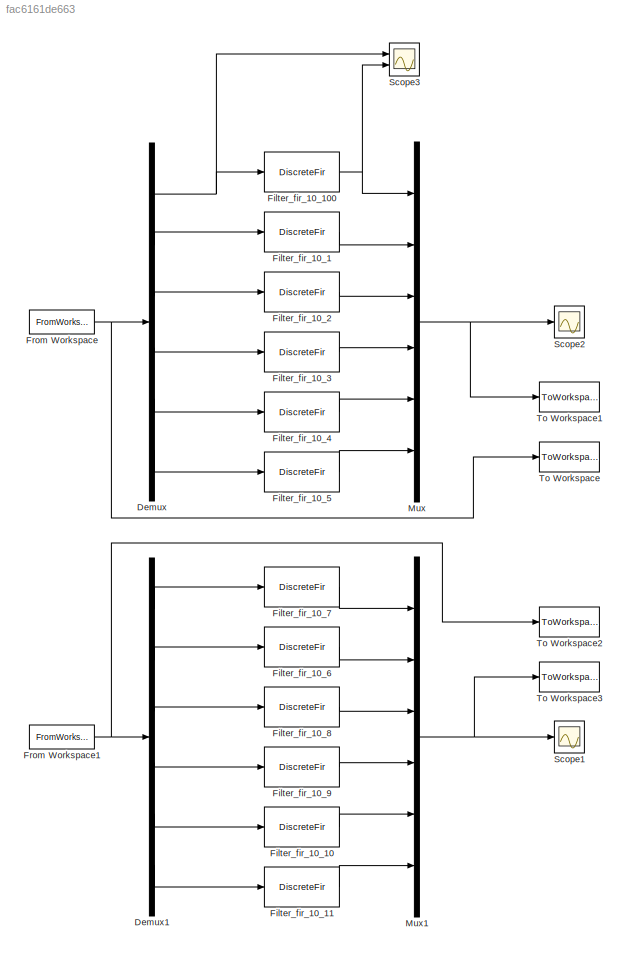
MODEL slx_fac6161de663
KIND model
CONFIG AbsTol = auto
CONFIG EnableMultiTasking = off
CONFIG FixedStep = auto
CONFIG MaxStep = auto
CONFIG MinStep = auto
CONFIG RelTol = 1e-3
CONFIG SampleTimeConstraint = Unconstrained
CONFIG Solver = VariableStepAuto
CONFIG SolverName = VariableStepAuto
CONFIG StartTime = 0.0
CONFIG StopTime = 120
BLOCK [Demux] Demux
  DisplayOption = bar
  Outputs = 6
  Ports = [1, 6]
BLOCK [Demux] Demux1
  DisplayOption = bar
  Outputs = 6
  Ports = [1, 6]
BLOCK [DiscreteFir] Filter_fir_10_1
  Coefficients = [0 0.0054786758595111026 0.042763636162144819 0.12151889269739169 0.20757905037865335 0.245319489804598 0.20757905037865335 0.12151889269739169 0.042763636162144819 0.0054786758595111026 0]  <repeated x12 — deduplicated; at blocks: Filter_fir_10_1, Filter_fir_10_10, Filter_fir_10_100, Filter_fir_10_11, Filter_fir_10_2, Filter_fir_10_3, Filter_fir_10_4, Filter_fir_10_5, Filter_fir_10_6, Filter_fir_10_7, Filter_fir_10_8, Filter_fir_10_9>
  InputPortMap = u0
  InputProcessing = Columns as channels (frame based)
  OutputPortMap = o0
  Ports = [1, 1]
  Tag = BlockMethodSubSystem
BLOCK [DiscreteFir] Filter_fir_10_10
  InputPortMap = u0
  InputProcessing = Columns as channels (frame based)
  OutputPortMap = o0
  Ports = [1, 1]
  Tag = BlockMethodSubSystem
BLOCK [DiscreteFir] Filter_fir_10_100
  InputPortMap = u0
  InputProcessing = Columns as channels (frame based)
  OutputPortMap = o0
  Ports = [1, 1]
  Tag = BlockMethodSubSystem
BLOCK [DiscreteFir] Filter_fir_10_11
  InputPortMap = u0
  InputProcessing = Columns as channels (frame based)
  OutputPortMap = o0
  Ports = [1, 1]
  Tag = BlockMethodSubSystem
BLOCK [DiscreteFir] Filter_fir_10_2
  InputPortMap = u0
  InputProcessing = Columns as channels (frame based)
  OutputPortMap = o0
  Ports = [1, 1]
  Tag = BlockMethodSubSystem
BLOCK [DiscreteFir] Filter_fir_10_3
  InputPortMap = u0
  InputProcessing = Columns as channels (frame based)
  OutputPortMap = o0
  Ports = [1, 1]
  Tag = BlockMethodSubSystem
BLOCK [DiscreteFir] Filter_fir_10_4
  InputPortMap = u0
  InputProcessing = Columns as channels (frame based)
  OutputPortMap = o0
  Ports = [1, 1]
  Tag = BlockMethodSubSystem
BLOCK [DiscreteFir] Filter_fir_10_5
  InputPortMap = u0
  InputProcessing = Columns as channels (frame based)
  OutputPortMap = o0
  Ports = [1, 1]
  Tag = BlockMethodSubSystem
BLOCK [DiscreteFir] Filter_fir_10_6
  InputPortMap = u0
  InputProcessing = Columns as channels (frame based)
  OutputPortMap = o0
  Ports = [1, 1]
  Tag = BlockMethodSubSystem
BLOCK [DiscreteFir] Filter_fir_10_7
  InputPortMap = u0
  InputProcessing = Columns as channels (frame based)
  OutputPortMap = o0
  Ports = [1, 1]
  Tag = BlockMethodSubSystem
BLOCK [DiscreteFir] Filter_fir_10_8
  InputPortMap = u0
  InputProcessing = Columns as channels (frame based)
  OutputPortMap = o0
  Ports = [1, 1]
  Tag = BlockMethodSubSystem
BLOCK [DiscreteFir] Filter_fir_10_9
  InputPortMap = u0
  InputProcessing = Columns as channels (frame based)
  OutputPortMap = o0
  Ports = [1, 1]
  Tag = BlockMethodSubSystem
BLOCK [FromWorkspace] From Workspace
  OutputAfterFinalValue = Setting to zero
  SampleTime = 0.003
  VariableName = imu_w_sm
  ZeroCross = on
BLOCK [FromWorkspace] From Workspace1
  OutputAfterFinalValue = Setting to zero
  SampleTime = 0.003
  VariableName = imu_b_sm
  ZeroCross = on
BLOCK [Mux] Mux
  DisplayOption = bar
  Inputs = 6
  Ports = [6, 1]
BLOCK [Mux] Mux1
  DisplayOption = bar
  Inputs = 6
  Ports = [6, 1]
BLOCK [Scope] Scope1
  NumInputPorts = 1
  Ports = [1]
  ScopeSpecificationString = Simulink.scopes.TimeScopeBlockCfg('CurrentConfiguration', extmgr.ConfigurationSet(extmgr.Configuration('Core','General UI',true),extmgr.Configuration('Core','Source UI',true),extmgr.Configuration('Sources','WiredSimulink',true,'DataLoggingVariableName','ScopeData1'),extmgr.Configuration('Visuals','Time Domain',true,'SerializedDisplays',{struct('MinYLimReal','-95.43437','MaxYLimReal','74.54332','YL...<+1543ch>
BLOCK [Scope] Scope2
  NumInputPorts = 1
  Ports = [1]
  ScopeSpecificationString = Simulink.scopes.TimeScopeBlockCfg('CurrentConfiguration', extmgr.ConfigurationSet(extmgr.Configuration('Core','General UI',true),extmgr.Configuration('Core','Source UI',true),extmgr.Configuration('Sources','WiredSimulink',true,'DataLoggingVariableName','ScopeData1'),extmgr.Configuration('Visuals','Time Domain',true,'SerializedDisplays',{struct('MinYLimReal','-16.9878','MaxYLimReal','6.68582','YLab...<+1518ch>
BLOCK [Scope] Scope3
  NumInputPorts = 2
  Ports = [2]
  ScopeSpecificationString = Simulink.scopes.TimeScopeBlockCfg('CurrentConfiguration', extmgr.ConfigurationSet(extmgr.Configuration('Core','General UI',true),extmgr.Configuration('Core','Source UI',true),extmgr.Configuration('Sources','WiredSimulink',true,'DataLoggingVariableName','ScopeData2'),extmgr.Configuration('Visuals','Time Domain',true,'SerializedDisplays',{struct('MinYLimReal','-0.88418','MaxYLimReal','0.79808','YLab...<+1438ch>
BLOCK [ToWorkspace] To Workspace
  FixptAsFi = on
  MaxDataPoints = inf
  Ports = [1]
  SampleTime = -1
  Save2DSignal = 3-D array (concatenate along third dimension)
  VariableName = imu_w_an
BLOCK [ToWorkspace] To Workspace1
  FixptAsFi = on
  MaxDataPoints = inf
  Ports = [1]
  SampleTime = -1
  Save2DSignal = 3-D array (concatenate along third dimension)
  VariableName = imu_w_an_fil
BLOCK [ToWorkspace] To Workspace2
  FixptAsFi = on
  MaxDataPoints = inf
  Ports = [1]
  SampleTime = -1
  Save2DSignal = 3-D array (concatenate along third dimension)
  VariableName = imu_b_an
BLOCK [ToWorkspace] To Workspace3
  FixptAsFi = on
  MaxDataPoints = inf
  Ports = [1]
  SampleTime = -1
  Save2DSignal = 3-D array (concatenate along third dimension)
  VariableName = imu_b_an_fil
LINE Demux1:1 -> Filter_fir_10_7:1
LINE Demux1:2 -> Filter_fir_10_6:1
LINE Demux1:3 -> Filter_fir_10_8:1
LINE Demux1:4 -> Filter_fir_10_9:1
LINE Demux1:5 -> Filter_fir_10_10:1
LINE Demux1:6 -> Filter_fir_10_11:1
NET Demux:1 -> Filter_fir_10_100:1, Scope3:1
LINE Demux:2 -> Filter_fir_10_1:1
LINE Demux:3 -> Filter_fir_10_2:1
LINE Demux:4 -> Filter_fir_10_3:1
LINE Demux:5 -> Filter_fir_10_4:1
LINE Demux:6 -> Filter_fir_10_5:1
NET Filter_fir_10_100:1 -> Mux:1, Scope3:2
LINE Filter_fir_10_10:1 -> Mux1:5
LINE Filter_fir_10_11:1 -> Mux1:6
LINE Filter_fir_10_1:1 -> Mux:2
LINE Filter_fir_10_2:1 -> Mux:3
LINE Filter_fir_10_3:1 -> Mux:4
LINE Filter_fir_10_4:1 -> Mux:5
LINE Filter_fir_10_5:1 -> Mux:6
LINE Filter_fir_10_6:1 -> Mux1:2
LINE Filter_fir_10_7:1 -> Mux1:1
LINE Filter_fir_10_8:1 -> Mux1:3
LINE Filter_fir_10_9:1 -> Mux1:4
NET From Workspace1:1 -> Demux1:1, To Workspace2:1
NET From Workspace:1 -> Demux:1, To Workspace:1
NET Mux1:1 -> Scope1:1, To Workspace3:1
NET Mux:1 -> Scope2:1, To Workspace1:1
note: NET lines group one-source signal fan-out (src -> all destinations, sorted); 1:1 wires keep LINE
